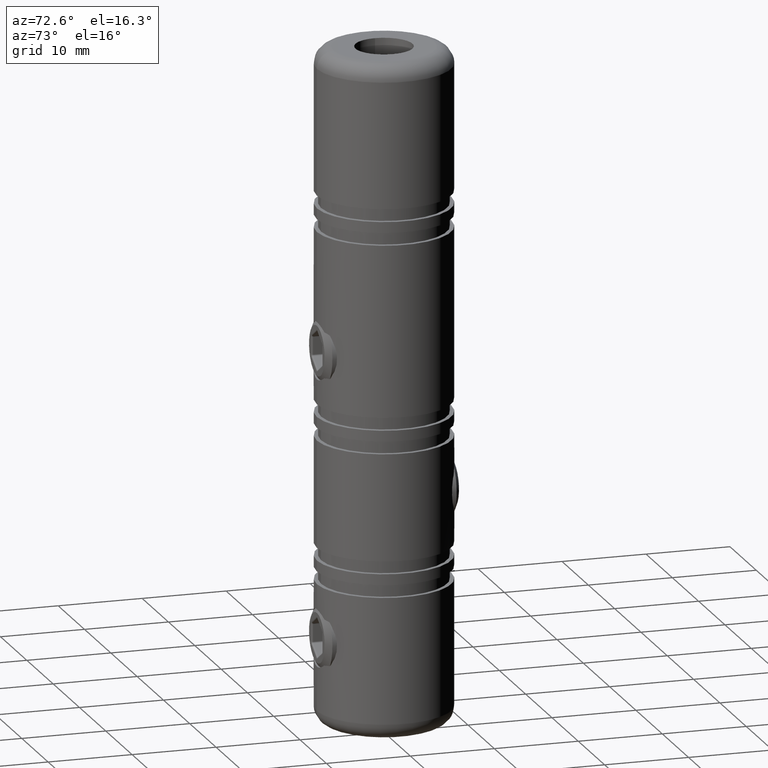
[diagram: clean part render]
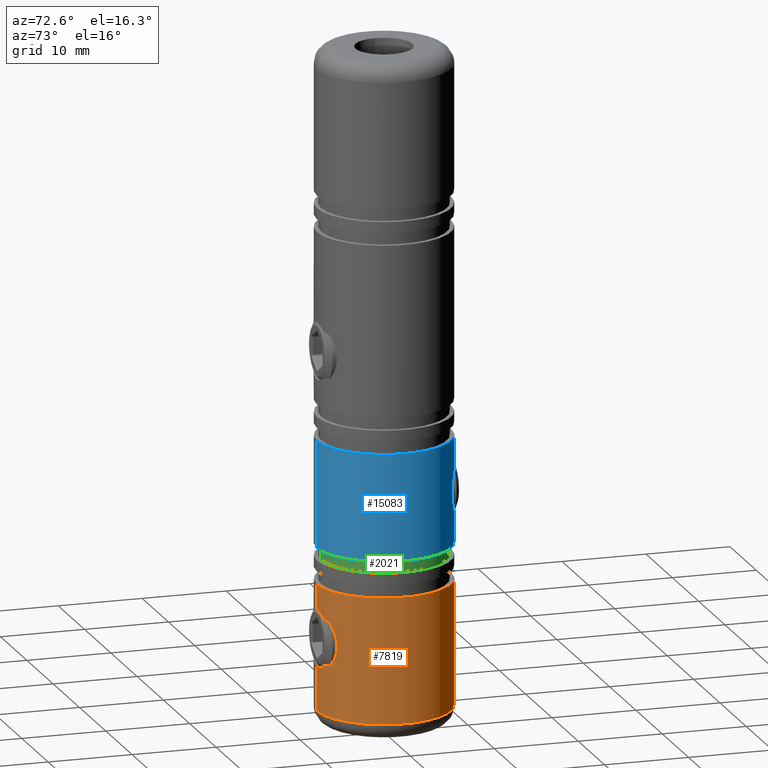
[diagram: same view with three faces highlighted in distinct colors, each labeled with its STEP entity id]
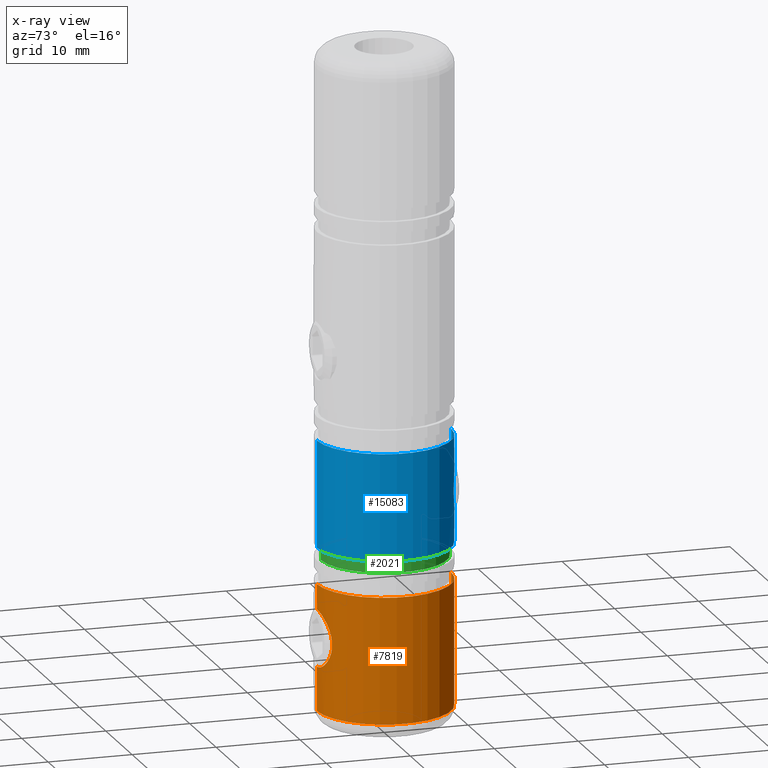
[diagram: x-ray of the same camera — body ghosted, the three highlighted faces saturated]
A machine part, auxiliary view with three faces highlighted in distinct colors.
The next image is the same camera in x-ray (body ghosted, the three faces saturated) — at least one of them is partly hidden behind the body in this view.
Their STEP definitions:

[orange] entity #7819 — the highlighted cylindrical surface (partial cylindrical patch) has radius 8 mm, axis along (0, 0, 1).
#5 = EDGE_CURVE ( 'NONE', #11032, #17241, #11402, .T. ) ;
#408 = CIRCLE ( 'NONE', #14298, 7.999999999999989300 ) ;
#495 = DIRECTION ( 'NONE',  ( 0.0000000000000000000, -1.000000000000000000, 0.0000000000000000000 ) ) ;
#640 = ORIENTED_EDGE ( 'NONE', *, *, #17148, .T. ) ;
#677 = DIRECTION ( 'NONE',  ( -0.0000000000000000000, 5.922595424346115800E-017, 1.000000000000000000 ) ) ;
#761 = CARTESIAN_POINT ( 'NONE',  ( 3.378187306158738000, -7.251913695931538200, -29.79631046784669800 ) ) ;
#942 = CARTESIAN_POINT ( 'NONE',  ( 3.052572273714783300, -7.395296992258901800, -27.83639892289966900 ) ) ;
#1220 = DIRECTION ( 'NONE',  ( -0.0000000000000000000, 5.922595424346115800E-017, 1.000000000000000000 ) ) ;
#1301 = DIRECTION ( 'NONE',  ( -0.0000000000000000000, 5.922595424346115800E-017, 1.000000000000000000 ) ) ;
#1873 = CARTESIAN_POINT ( 'NONE',  ( 0.0000000000000000000, -8.000000000000001800, -38.00000000000000000 ) ) ;
#2074 = EDGE_LOOP ( 'NONE', ( #13363, #640, #13970, #9562, #2859, #6496 ) ) ;
#2095 = CARTESIAN_POINT ( 'NONE',  ( 3.288445093137513100, -7.293045009710997600, -28.45765074939204100 ) ) ;
#2156 = CARTESIAN_POINT ( 'NONE',  ( 1.713622867567699000, -7.816565416602435900, -32.29477655129349500 ) ) ;
#2269 = CARTESIAN_POINT ( 'NONE',  ( 2.249526365061704800, -7.678958453456080400, -31.90898235102445600 ) ) ;
#2779 = VERTEX_POINT ( 'NONE', #10123 ) ;
#2859 = ORIENTED_EDGE ( 'NONE', *, *, #7414, .T. ) ;
#2879 = CARTESIAN_POINT ( 'NONE',  ( 0.0000000000000000000, -7.999999999999992900, -23.00000000000000000 ) ) ;
#3451 = CARTESIAN_POINT ( 'NONE',  ( 3.399927834273002200, -7.241580678833922300, -29.12474920039446100 ) ) ;
#3510 = CARTESIAN_POINT ( 'NONE',  ( 3.052721761500024400, -7.395235532313912500, -30.86331604793466000 ) ) ;
#3545 = CARTESIAN_POINT ( 'NONE',  ( 0.0000000000000000000, -7.999999999999996400, 40.00000000000000000 ) ) ;
#4430 = VECTOR ( 'NONE', #677, 1000.000000000000000 ) ;
#4762 = CARTESIAN_POINT ( 'NONE',  ( 2.945959785431271800, -7.438979555004729100, -27.63840686677446400 ) ) ;
#4817 = CARTESIAN_POINT ( 'NONE',  ( 1.104433361339424200, -7.926175410825922400, -32.57343947881968700 ) ) ;
#4940 = CARTESIAN_POINT ( 'NONE',  ( 1.714033983148292500, -7.816483921416024200, -26.40542872013250900 ) ) ;
#5001 = CARTESIAN_POINT ( 'NONE',  ( 2.562422619992453100, -7.580287893962865700, -27.10438571523191700 ) ) ;
#5796 = DIRECTION ( 'NONE',  ( -0.0000000000000000000, 5.922595424346115800E-017, 1.000000000000000000 ) ) ;
#6153 = CARTESIAN_POINT ( 'NONE',  ( 9.797174393178821700E-016, 7.999999999999996400, 40.00000000000000000 ) ) ;
#6196 = CARTESIAN_POINT ( 'NONE',  ( 0.4541065086489162200, -7.990117268299901100, -32.72691919283411000 ) ) ;
#6255 = CARTESIAN_POINT ( 'NONE',  ( 3.377083083094455600, -7.252426248789287700, -28.89671403560442900 ) ) ;
#6374 = CARTESIAN_POINT ( 'NONE',  ( 2.561623328396617000, -7.580557876596324200, -31.59651852059508000 ) ) ;
#6448 = VERTEX_POINT ( 'NONE', #2879 ) ;
#6496 = ORIENTED_EDGE ( 'NONE', *, *, #16491, .F. ) ;
#7414 = EDGE_CURVE ( 'NONE', #8248, #2779, #11262, .T. ) ;
#7435 = CARTESIAN_POINT ( 'NONE',  ( -8.690583981119524000E-021, -8.000000000000000000, -25.95000000000001000 ) ) ;
#7517 = CARTESIAN_POINT ( 'NONE',  ( 3.223514654248764700, -7.322402065263659700, -30.45371594530288200 ) ) ;
#7573 = CARTESIAN_POINT ( 'NONE',  ( 0.2273669206469679200, -8.000000000000001800, -32.75000000000001400 ) ) ;
#7636 = VECTOR ( 'NONE', #5796, 1000.000000000000000 ) ;
#7695 = CARTESIAN_POINT ( 'NONE',  ( 0.4514605358758937400, -7.990308472804963800, -25.97262602300038700 ) ) ;
#7819 = ADVANCED_FACE ( 'NONE', ( #9921 ), #10144, .T. ) ;
#8140 = DIRECTION ( 'NONE',  ( -0.0000000000000000000, 5.922595424346115800E-017, 1.000000000000000000 ) ) ;
#8248 = VERTEX_POINT ( 'NONE', #7435 ) ;
#8492 = VERTEX_POINT ( 'NONE', #13960 ) ;
#8898 = CARTESIAN_POINT ( 'NONE',  ( 1.518421302072224400, -7.857380380396149300, -32.40036585882188500 ) ) ;
#8957 = CARTESIAN_POINT ( 'NONE',  ( 1.516685106667517800, -7.857686519964296700, -26.29885761503504300 ) ) ;
#9562 = ORIENTED_EDGE ( 'NONE', *, *, #17554, .F. ) ;
#9921 = FACE_OUTER_BOUND ( 'NONE', #2074, .T. ) ;
#10123 = CARTESIAN_POINT ( 'NONE',  ( 0.0000000000000000000, -8.000000000000000000, -32.75000000000000700 ) ) ;
#10144 = CYLINDRICAL_SURFACE ( 'NONE', #12532, 7.999999999999996400 ) ;
#10316 = AXIS2_PLACEMENT_3D ( 'NONE', #13525, #1301, #10764 ) ;
#10352 = CARTESIAN_POINT ( 'NONE',  ( 2.250321709453295700, -7.678725574128311100, -26.79171045357125900 ) ) ;
#10464 = CARTESIAN_POINT ( 'NONE',  ( -8.690583981119524000E-021, -8.000000000000000000, -25.95000000000001000 ) ) ;
#10621 = CARTESIAN_POINT ( 'NONE',  ( 0.0000000000000000000, 0.0000000000000000000, 40.00000000000000000 ) ) ;
#10764 = DIRECTION ( 'NONE',  ( 0.0000000000000000000, -1.000000000000000000, 0.0000000000000000000 ) ) ;
#10885 = LINE ( 'NONE', #3545, #4430 ) ;
#11032 = VERTEX_POINT ( 'NONE', #1873 ) ;
#11262 = B_SPLINE_CURVE_WITH_KNOTS ( 'NONE', 3,
 ( #10464, #11894, #7695, #12977, #15925, #8957, #4940, #13157, #10352, #5001, #11778, #4762, #942, #17318, #2095, #6255, #3451, #13218, #761, #14367, #7517, #3510, #17254, #15805, #6374, #2269, #17134, #2156, #8898, #4817, #14422, #6196, #7573, #13093 ),
 .UNSPECIFIED., .F., .F.,
 ( 4, 2, 2, 2, 2, 2, 2, 2, 2, 2, 2, 2, 2, 2, 2, 2, 4 ),
 ( 0.01075952590451986400, 0.01143140143656543700, 0.01210327696861100900, 0.01277515250065658200, 0.01344702803270215300, 0.01411890356474772600, 0.01479077909679329900, 0.01546265462883887300, 0.01613453016088444600, 0.01680640569293001900, 0.01747828122497559200, 0.01815015675702116200, 0.01882203228906674500, 0.01949390782111232500, 0.02016578335315790500, 0.02083765888520348900, 0.02150953441724906900 ),
 .UNSPECIFIED. ) ;
#11402 = CIRCLE ( 'NONE', #10316, 7.999999999999996400 ) ;
#11778 = CARTESIAN_POINT ( 'NONE',  ( 2.701287393388045900, -7.531277600479182200, -27.27363863226897300 ) ) ;
#11894 = CARTESIAN_POINT ( 'NONE',  ( 0.2239787353389024700, -8.000000000000000000, -25.95000000000001400 ) ) ;
#12532 = AXIS2_PLACEMENT_3D ( 'NONE', #10621, #1220, #14993 ) ;
#12695 = EDGE_CURVE ( 'NONE', #6448, #8492, #408, .T. ) ;
#12977 = CARTESIAN_POINT ( 'NONE',  ( 0.8919228570024738700, -7.953195566763634300, -26.06139159930464900 ) ) ;
#13007 = LINE ( 'NONE', #6153, #13875 ) ;
#13093 = CARTESIAN_POINT ( 'NONE',  ( 0.0000000000000000000, -8.000000000000000000, -32.75000000000000700 ) ) ;
#13157 = CARTESIAN_POINT ( 'NONE',  ( 2.079259359964981800, -7.727354909873132400, -26.65090885081558300 ) ) ;
#13218 = CARTESIAN_POINT ( 'NONE',  ( 3.400071815042918100, -7.241513078002127700, -29.57306692614104500 ) ) ;
#13363 = ORIENTED_EDGE ( 'NONE', *, *, #5, .T. ) ;
#13525 = CARTESIAN_POINT ( 'NONE',  ( 0.0000000000000000000, -4.619624430989970600E-015, -38.00000000000000000 ) ) ;
#13875 = VECTOR ( 'NONE', #8140, 1000.000000000000000 ) ;
#13960 = CARTESIAN_POINT ( 'NONE',  ( 9.797174393178817800E-016, 7.999999999999986700, -23.00000000000000000 ) ) ;
#13970 = ORIENTED_EDGE ( 'NONE', *, *, #12695, .F. ) ;
#14152 = DIRECTION ( 'NONE',  ( -0.0000000000000000000, 5.922595424346115800E-017, 1.000000000000000000 ) ) ;
#14275 = CARTESIAN_POINT ( 'NONE',  ( 0.0000000000000000000, -3.731235117338052300E-015, -23.00000000000000000 ) ) ;
#14298 = AXIS2_PLACEMENT_3D ( 'NONE', #14275, #14152, #495 ) ;
#14367 = CARTESIAN_POINT ( 'NONE',  ( 3.289087680130575700, -7.292756952013739600, -30.24064288107796400 ) ) ;
#14422 = CARTESIAN_POINT ( 'NONE',  ( 0.8915802709335709500, -7.953192522683177200, -32.63859857334559000 ) ) ;
#14993 = DIRECTION ( 'NONE',  ( 0.0000000000000000000, -1.000000000000000000, 0.0000000000000000000 ) ) ;
#15805 = CARTESIAN_POINT ( 'NONE',  ( 2.700751742660143500, -7.531476546076911300, -31.42712517569574300 ) ) ;
#15925 = CARTESIAN_POINT ( 'NONE',  ( 1.104852776315200100, -7.926088032660516100, -26.12678671062784700 ) ) ;
#16304 = CARTESIAN_POINT ( 'NONE',  ( 9.797174393178821700E-016, 7.999999999999991100, -38.00000000000000000 ) ) ;
#16491 = EDGE_CURVE ( 'NONE', #11032, #2779, #10885, .T. ) ;
#16855 = CARTESIAN_POINT ( 'NONE',  ( 0.0000000000000000000, -7.999999999999996400, 40.00000000000000000 ) ) ;
#17109 = LINE ( 'NONE', #16855, #7636 ) ;
#17134 = CARTESIAN_POINT ( 'NONE',  ( 2.078157764837678600, -7.727642496177020700, -32.04990232670439800 ) ) ;
#17148 = EDGE_CURVE ( 'NONE', #17241, #8492, #13007, .T. ) ;
#17241 = VERTEX_POINT ( 'NONE', #16304 ) ;
#17254 = CARTESIAN_POINT ( 'NONE',  ( 2.946162588092069400, -7.438906165836147700, -31.06132550250311300 ) ) ;
#17318 = CARTESIAN_POINT ( 'NONE',  ( 3.223330730684855100, -7.322482781856743700, -28.24576963115745800 ) ) ;
#17554 = EDGE_CURVE ( 'NONE', #8248, #6448, #17109, .T. ) ;

[blue] entity #15083 — the highlighted cylindrical surface (partial cylindrical patch) has radius 8 mm, axis along (0, 0, 1).
#29 = CARTESIAN_POINT ( 'NONE',  ( 9.797174393178813800E-016, 7.999999999999989300, 40.00000000000000000 ) ) ;
#1064 = CARTESIAN_POINT ( 'NONE',  ( 3.288445093137510400, 7.293045009710979800, -13.24234925060799900 ) ) ;
#1107 = AXIS2_PLACEMENT_3D ( 'NONE', #1771, #7123, #8756 ) ;
#1126 = CARTESIAN_POINT ( 'NONE',  ( 2.079259359964982700, 7.727354909873117400, -15.04909114918444900 ) ) ;
#1183 = CARTESIAN_POINT ( 'NONE',  ( 1.714033983148293600, 7.816483921416010000, -15.29457127986752100 ) ) ;
#1195 = VERTEX_POINT ( 'NONE', #8556 ) ;
#1242 = CARTESIAN_POINT ( 'NONE',  ( 3.223330730684855100, 7.322482781856729500, -13.45423036884258700 ) ) ;
#1297 = CARTESIAN_POINT ( 'NONE',  ( 0.2239787353389027800, 7.999999999999984900, -15.75000000000001100 ) ) ;
#1771 = CARTESIAN_POINT ( 'NONE',  ( 0.0000000000000000000, -2.724393895199214000E-015, -6.000000000000012400 ) ) ;
#2449 = CARTESIAN_POINT ( 'NONE',  ( 3.052721761500027100, 7.395235532313896500, -10.83668395206536900 ) ) ;
#2454 = ORIENTED_EDGE ( 'NONE', *, *, #14032, .T. ) ;
#2565 = CARTESIAN_POINT ( 'NONE',  ( 1.713622867567705900, 7.816565416602423400, -9.405223448706529200 ) ) ;
#2567 = CARTESIAN_POINT ( 'NONE',  ( 0.0000000000000000000, -7.999999999999994700, -6.000000000000011500 ) ) ;
#2626 = CARTESIAN_POINT ( 'NONE',  ( 0.0000000000000000000, 7.999999999999988500, -8.950000000000015300 ) ) ;
#2733 = DIRECTION ( 'NONE',  ( -0.0000000000000000000, 5.922595424346115800E-017, 1.000000000000000000 ) ) ;
#2915 = EDGE_CURVE ( 'NONE', #1195, #10435, #3007, .T. ) ;
#3007 = CIRCLE ( 'NONE', #13443, 7.999999999999989300 ) ;
#3334 = CARTESIAN_POINT ( 'NONE',  ( 0.0000000000000000000, 0.0000000000000000000, 40.00000000000000000 ) ) ;
#3636 = VERTEX_POINT ( 'NONE', #8010 ) ;
#3649 = VECTOR ( 'NONE', #6084, 1000.000000000000000 ) ;
#3777 = VERTEX_POINT ( 'NONE', #2567 ) ;
#3980 = CARTESIAN_POINT ( 'NONE',  ( 1.516685106667518400, 7.857686519964282500, -15.40114238496498100 ) ) ;
#4033 = CARTESIAN_POINT ( 'NONE',  ( 2.700751742660145300, 7.531476546076894400, -10.27287482430427800 ) ) ;
#4041 = ORIENTED_EDGE ( 'NONE', *, *, #4581, .T. ) ;
#4257 = CIRCLE ( 'NONE', #1107, 7.999999999999991100 ) ;
#4275 = LINE ( 'NONE', #9927, #3649 ) ;
#4581 = EDGE_CURVE ( 'NONE', #4743, #3636, #16007, .T. ) ;
#4743 = VERTEX_POINT ( 'NONE', #15425 ) ;
#5176 = CARTESIAN_POINT ( 'NONE',  ( 2.249526365061703000, 7.678958453456066200, -9.791017648975557800 ) ) ;
#5233 = CARTESIAN_POINT ( 'NONE',  ( 3.400071815042919000, 7.241513078002112600, -12.12693307385899300 ) ) ;
#5251 = CARTESIAN_POINT ( 'NONE',  ( 9.797174393178815800E-016, 7.999999999999988500, -6.000000000000013300 ) ) ;
#5771 = LINE ( 'NONE', #7432, #11353 ) ;
#6084 = DIRECTION ( 'NONE',  ( -0.0000000000000000000, 5.922595424346115800E-017, 1.000000000000000000 ) ) ;
#6372 = CARTESIAN_POINT ( 'NONE',  ( 9.797174393178813800E-016, 7.999999999999986700, -18.70000000000001000 ) ) ;
#6601 = CYLINDRICAL_SURFACE ( 'NONE', #8437, 7.999999999999989300 ) ;
#6610 = CARTESIAN_POINT ( 'NONE',  ( 2.562422619992452200, 7.580287893962849700, -14.59561428476810200 ) ) ;
#6726 = CARTESIAN_POINT ( 'NONE',  ( 2.250321709453294800, 7.678725574128295200, -14.90828954642877900 ) ) ;
#6909 = DIRECTION ( 'NONE',  ( -0.0000000000000000000, 5.922595424346115800E-017, 1.000000000000000000 ) ) ;
#7123 = DIRECTION ( 'NONE',  ( -0.0000000000000000000, 5.922595424346115800E-017, 1.000000000000000000 ) ) ;
#7351 = ORIENTED_EDGE ( 'NONE', *, *, #2915, .T. ) ;
#7432 = CARTESIAN_POINT ( 'NONE',  ( 0.0000000000000000000, -7.999999999999989300, 40.00000000000000000 ) ) ;
#7738 = ORIENTED_EDGE ( 'NONE', *, *, #12717, .F. ) ;
#7824 = EDGE_LOOP ( 'NONE', ( #7351, #2454, #4041, #12805, #7738, #8412 ) ) ;
#7885 = CARTESIAN_POINT ( 'NONE',  ( 0.4514605358758959100, 7.990308472804951400, -15.72737397699963300 ) ) ;
#8005 = CARTESIAN_POINT ( 'NONE',  ( 3.377083083094454300, 7.252426248789273400, -12.80328596439560600 ) ) ;
#8010 = CARTESIAN_POINT ( 'NONE',  ( 0.0000000000000000000, 7.999999999999988500, -8.950000000000015300 ) ) ;
#8116 = CARTESIAN_POINT ( 'NONE',  ( 3.378187306158739300, 7.251913695931523100, -11.90368953215333500 ) ) ;
#8412 = ORIENTED_EDGE ( 'NONE', *, *, #12141, .F. ) ;
#8437 = AXIS2_PLACEMENT_3D ( 'NONE', #3334, #12911, #13995 ) ;
#8556 = CARTESIAN_POINT ( 'NONE',  ( 0.0000000000000000000, -7.999999999999992900, -18.70000000000001000 ) ) ;
#8756 = DIRECTION ( 'NONE',  ( 0.0000000000000000000, -1.000000000000000000, 1.084202172485505700E-016 ) ) ;
#9262 = CARTESIAN_POINT ( 'NONE',  ( 0.8919228570024746400, 7.953195566763620100, -15.63860840069537500 ) ) ;
#9369 = CARTESIAN_POINT ( 'NONE',  ( 2.561623328396614800, 7.580557876596308200, -10.10348147940495000 ) ) ;
#9927 = CARTESIAN_POINT ( 'NONE',  ( 9.797174393178813800E-016, 7.999999999999989300, 40.00000000000000000 ) ) ;
#10271 = FACE_OUTER_BOUND ( 'NONE', #7824, .T. ) ;
#10435 = VERTEX_POINT ( 'NONE', #6372 ) ;
#10646 = CARTESIAN_POINT ( 'NONE',  ( 2.946162588092070800, 7.438906165836132600, -10.63867449749691500 ) ) ;
#10765 = CARTESIAN_POINT ( 'NONE',  ( 0.0000000000000000000, -3.476563514091170300E-015, -18.70000000000001000 ) ) ;
#10824 = CARTESIAN_POINT ( 'NONE',  ( 0.8915802709335743900, 7.953192522683165700, -9.061401426654434500 ) ) ;
#10880 = CARTESIAN_POINT ( 'NONE',  ( 1.104433361339426800, 7.926175410825909000, -9.126560521180330500 ) ) ;
#10934 = VERTEX_POINT ( 'NONE', #5251 ) ;
#11007 = DIRECTION ( 'NONE',  ( 0.0000000000000000000, -1.000000000000000000, 0.0000000000000000000 ) ) ;
#11098 = EDGE_CURVE ( 'NONE', #3636, #10934, #4275, .T. ) ;
#11353 = VECTOR ( 'NONE', #11518, 1000.000000000000000 ) ;
#11518 = DIRECTION ( 'NONE',  ( -0.0000000000000000000, 5.922595424346115800E-017, 1.000000000000000000 ) ) ;
#12073 = CARTESIAN_POINT ( 'NONE',  ( 9.797087487296591500E-016, 7.999999999999986700, -15.75000000000001400 ) ) ;
#12130 = CARTESIAN_POINT ( 'NONE',  ( 1.518421302072227300, 7.857380380396135100, -9.299634141178144000 ) ) ;
#12141 = EDGE_CURVE ( 'NONE', #1195, #3777, #5771, .T. ) ;
#12188 = CARTESIAN_POINT ( 'NONE',  ( 1.104852776315201000, 7.926088032660501900, -15.57321328937218400 ) ) ;
#12251 = CARTESIAN_POINT ( 'NONE',  ( 2.078157764837686100, 7.727642496177007400, -9.650097673295629600 ) ) ;
#12717 = EDGE_CURVE ( 'NONE', #3777, #10934, #4257, .T. ) ;
#12805 = ORIENTED_EDGE ( 'NONE', *, *, #11098, .T. ) ;
#12911 = DIRECTION ( 'NONE',  ( -0.0000000000000000000, 5.922595424346115800E-017, 1.000000000000000000 ) ) ;
#13443 = AXIS2_PLACEMENT_3D ( 'NONE', #10765, #6909, #11007 ) ;
#13902 = VECTOR ( 'NONE', #2733, 1000.000000000000000 ) ;
#13995 = DIRECTION ( 'NONE',  ( 0.0000000000000000000, -1.000000000000000000, 0.0000000000000000000 ) ) ;
#14032 = EDGE_CURVE ( 'NONE', #10435, #4743, #17570, .T. ) ;
#14722 = CARTESIAN_POINT ( 'NONE',  ( 2.701287393388046400, 7.531277600479167900, -14.42636136773105100 ) ) ;
#14783 = CARTESIAN_POINT ( 'NONE',  ( 3.223514654248766000, 7.322402065263643700, -11.24628405469714700 ) ) ;
#14841 = CARTESIAN_POINT ( 'NONE',  ( 0.4541065086489177700, 7.990117268299888700, -8.973080807165922900 ) ) ;
#15083 = ADVANCED_FACE ( 'NONE', ( #10271 ), #6601, .T. ) ;
#15425 = CARTESIAN_POINT ( 'NONE',  ( 9.797087487296591500E-016, 7.999999999999986700, -15.75000000000001400 ) ) ;
#16007 = B_SPLINE_CURVE_WITH_KNOTS ( 'NONE', 3,
 ( #12073, #1297, #7885, #9262, #12188, #3980, #1183, #1126, #6726, #6610, #14722, #16224, #17618, #1242, #1064, #8005, #16343, #5233, #8116, #17736, #14783, #2449, #10646, #4033, #9369, #5176, #12251, #2565, #12130, #10880, #10824, #14841, #17556, #2626 ),
 .UNSPECIFIED., .F., .F.,
 ( 4, 2, 2, 2, 2, 2, 2, 2, 2, 2, 2, 2, 2, 2, 2, 2, 4 ),
 ( 0.01075952590451986400, 0.01143140143656543700, 0.01210327696861101000, 0.01277515250065658400, 0.01344702803270216000, 0.01411890356474773500, 0.01479077909679331000, 0.01546265462883888700, 0.01613453016088446000, 0.01680640569293003600, 0.01747828122497560900, 0.01815015675702118600, 0.01882203228906675900, 0.01949390782111233600, 0.02016578335315791200, 0.02083765888520348500, 0.02150953441724906200 ),
 .UNSPECIFIED. ) ;
#16224 = CARTESIAN_POINT ( 'NONE',  ( 2.945959785431274000, 7.438979555004716600, -14.06159313322554800 ) ) ;
#16343 = CARTESIAN_POINT ( 'NONE',  ( 3.399927834273002200, 7.241580678833904500, -12.57525079960556800 ) ) ;
#17556 = CARTESIAN_POINT ( 'NONE',  ( 0.2273669206469684000, 7.999999999999991100, -8.950000000000017100 ) ) ;
#17570 = LINE ( 'NONE', #29, #13902 ) ;
#17618 = CARTESIAN_POINT ( 'NONE',  ( 3.052572273714785600, 7.395296992258887600, -13.86360107710035200 ) ) ;
#17736 = CARTESIAN_POINT ( 'NONE',  ( 3.289087680130576600, 7.292756952013722800, -11.45935711892207300 ) ) ;

[green] entity #2021 — the highlighted cylindrical surface (partial cylindrical patch) has radius 7.5 mm, axis along (0, 0, 1).
#132 = ORIENTED_EDGE ( 'NONE', *, *, #12508, .F. ) ;
#254 = AXIS2_PLACEMENT_3D ( 'NONE', #1162, #14756, #10736 ) ;
#1032 = VERTEX_POINT ( 'NONE', #1704 ) ;
#1162 = CARTESIAN_POINT ( 'NONE',  ( 0.0000000000000000000, -3.565402445456362600E-015, -20.20000000000001000 ) ) ;
#1498 = CARTESIAN_POINT ( 'NONE',  ( 0.0000000000000000000, -7.499999999999989300, -18.70000000000001000 ) ) ;
#1678 = LINE ( 'NONE', #13383, #12377 ) ;
#1704 = CARTESIAN_POINT ( 'NONE',  ( 9.184850993605130200E-016, 7.499999999999981300, -20.20000000000001000 ) ) ;
#2021 = ADVANCED_FACE ( 'NONE', ( #7288 ), #4908, .T. ) ;
#2473 = ORIENTED_EDGE ( 'NONE', *, *, #8302, .T. ) ;
#3501 = ORIENTED_EDGE ( 'NONE', *, *, #16595, .T. ) ;
#3741 = AXIS2_PLACEMENT_3D ( 'NONE', #10929, #5394, #5456 ) ;
#4105 = ORIENTED_EDGE ( 'NONE', *, *, #14030, .F. ) ;
#4481 = LINE ( 'NONE', #4659, #6834 ) ;
#4659 = CARTESIAN_POINT ( 'NONE',  ( 0.0000000000000000000, -7.499999999999985800, 40.00000000000000000 ) ) ;
#4908 = CYLINDRICAL_SURFACE ( 'NONE', #6880, 7.499999999999985800 ) ;
#5095 = DIRECTION ( 'NONE',  ( -0.0000000000000000000, 5.922595424346115800E-017, 1.000000000000000000 ) ) ;
#5394 = DIRECTION ( 'NONE',  ( -0.0000000000000000000, 5.922595424346115800E-017, 1.000000000000000000 ) ) ;
#5456 = DIRECTION ( 'NONE',  ( 0.0000000000000000000, -1.000000000000000000, 0.0000000000000000000 ) ) ;
#6834 = VECTOR ( 'NONE', #14259, 1000.000000000000000 ) ;
#6880 = AXIS2_PLACEMENT_3D ( 'NONE', #14671, #7830, #14731 ) ;
#7288 = FACE_OUTER_BOUND ( 'NONE', #11168, .T. ) ;
#7830 = DIRECTION ( 'NONE',  ( -0.0000000000000000000, 5.922595424346115800E-017, 1.000000000000000000 ) ) ;
#8302 = EDGE_CURVE ( 'NONE', #12607, #1032, #9492, .T. ) ;
#9492 = CIRCLE ( 'NONE', #254, 7.499999999999984900 ) ;
#10148 = VERTEX_POINT ( 'NONE', #1498 ) ;
#10736 = DIRECTION ( 'NONE',  ( 0.0000000000000000000, -1.000000000000000000, 0.0000000000000000000 ) ) ;
#10929 = CARTESIAN_POINT ( 'NONE',  ( 0.0000000000000000000, -3.476563514091170300E-015, -18.70000000000001000 ) ) ;
#11168 = EDGE_LOOP ( 'NONE', ( #2473, #3501, #4105, #132 ) ) ;
#11560 = CARTESIAN_POINT ( 'NONE',  ( 9.184850993605132200E-016, 7.499999999999982200, -18.70000000000001000 ) ) ;
#11730 = CARTESIAN_POINT ( 'NONE',  ( 0.0000000000000000000, -7.499999999999988500, -20.20000000000001000 ) ) ;
#12377 = VECTOR ( 'NONE', #5095, 1000.000000000000000 ) ;
#12508 = EDGE_CURVE ( 'NONE', #12607, #10148, #4481, .T. ) ;
#12586 = VERTEX_POINT ( 'NONE', #11560 ) ;
#12607 = VERTEX_POINT ( 'NONE', #11730 ) ;
#13383 = CARTESIAN_POINT ( 'NONE',  ( 9.184850993605132200E-016, 7.499999999999985800, 40.00000000000000000 ) ) ;
#14030 = EDGE_CURVE ( 'NONE', #10148, #12586, #16927, .T. ) ;
#14259 = DIRECTION ( 'NONE',  ( -0.0000000000000000000, 5.922595424346115800E-017, 1.000000000000000000 ) ) ;
#14671 = CARTESIAN_POINT ( 'NONE',  ( 0.0000000000000000000, 0.0000000000000000000, 40.00000000000000000 ) ) ;
#14731 = DIRECTION ( 'NONE',  ( 0.0000000000000000000, -1.000000000000000000, 0.0000000000000000000 ) ) ;
#14756 = DIRECTION ( 'NONE',  ( -0.0000000000000000000, 5.922595424346115800E-017, 1.000000000000000000 ) ) ;
#16595 = EDGE_CURVE ( 'NONE', #1032, #12586, #1678, .T. ) ;
#16927 = CIRCLE ( 'NONE', #3741, 7.499999999999985800 ) ;